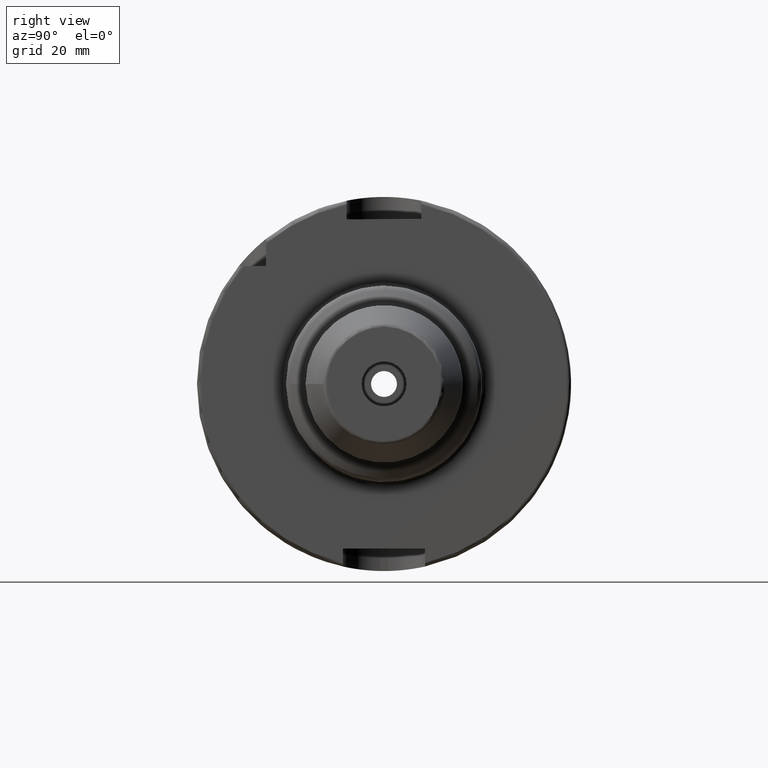
[diagram: clean part render]
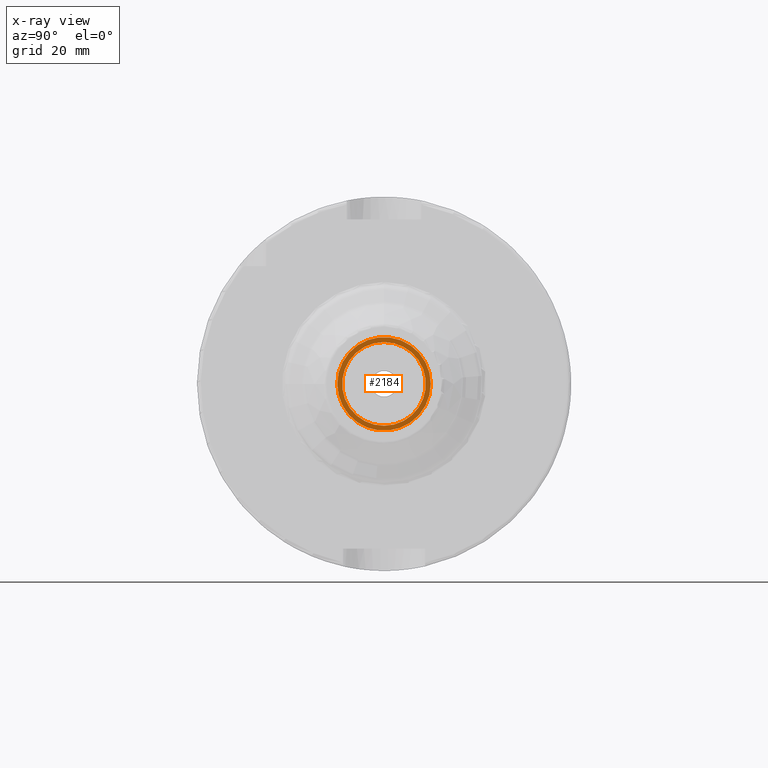
[diagram: x-ray — body ghosted, one internal face saturated and labeled with its STEP entity id]
A machine part, right view, then the same camera in x-ray: the body is ghosted and one INTERNAL B-rep face — a face not visible from any outside direction — is saturated and labeled: STEP entity #2184.
In plain terms, the highlighted planar face has unit normal (-1, 0, 0).
Its self-contained STEP definition (entity closure, byte-faithful):
#101=FACE_BOUND('',#431,.T.);
#137=PLANE('',#2465);
#296=FACE_OUTER_BOUND('',#430,.T.);
#430=EDGE_LOOP('',(#1956));
#431=EDGE_LOOP('',(#1957));
#794=CIRCLE('',#2456,11.188101);
#799=CIRCLE('',#2464,12.5);
#1019=VERTEX_POINT('',#4656);
#1023=VERTEX_POINT('',#4669);
#1336=EDGE_CURVE('',#1019,#1019,#794,.T.);
#1342=EDGE_CURVE('',#1023,#1023,#799,.T.);
#1956=ORIENTED_EDGE('',*,*,#1342,.F.);
#1957=ORIENTED_EDGE('',*,*,#1336,.T.);
#2184=ADVANCED_FACE('',(#296,#101),#137,.F.);
#2456=AXIS2_PLACEMENT_3D('',#4658,#3071,#3072);
#2464=AXIS2_PLACEMENT_3D('',#4671,#3088,#3089);
#2465=AXIS2_PLACEMENT_3D('',#4672,#3090,#3091);
#3071=DIRECTION('center_axis',(-1.,0.,0.));
#3072=DIRECTION('ref_axis',(0.,0.,1.));
#3088=DIRECTION('center_axis',(-1.,0.,0.));
#3089=DIRECTION('ref_axis',(0.,0.,1.));
#3090=DIRECTION('center_axis',(-1.,0.,0.));
#3091=DIRECTION('ref_axis',(0.,0.,1.));
#4656=CARTESIAN_POINT('',(22.5,-1.37014720781873E-15,-11.188101));
#4658=CARTESIAN_POINT('Origin',(22.5,0.,0.));
#4669=CARTESIAN_POINT('',(22.5,-12.5,1.53080849893419E-15));
#4671=CARTESIAN_POINT('Origin',(22.5,0.,0.));
#4672=CARTESIAN_POINT('Origin',(22.5,10.,0.));